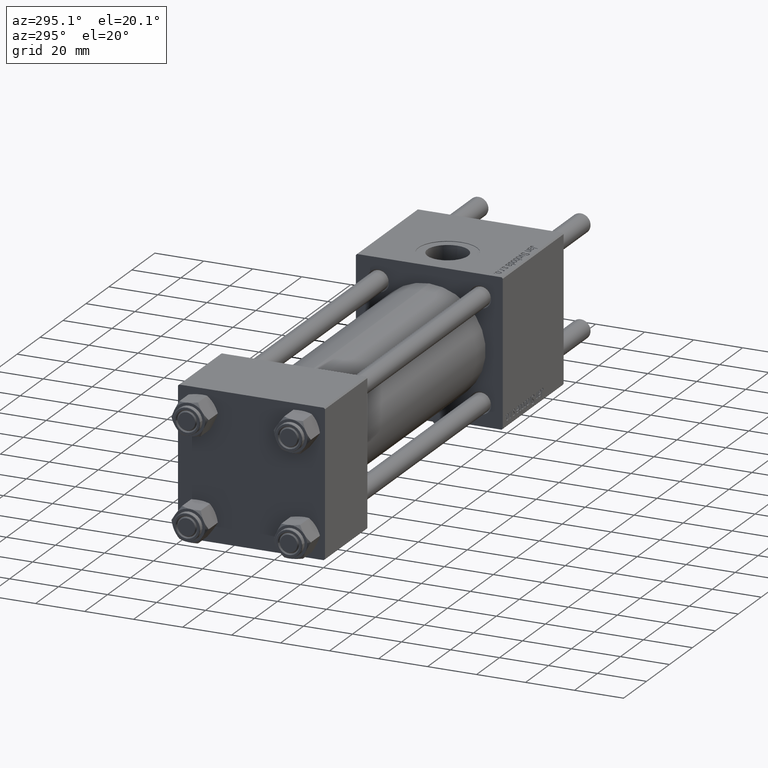
[diagram: clean part render]
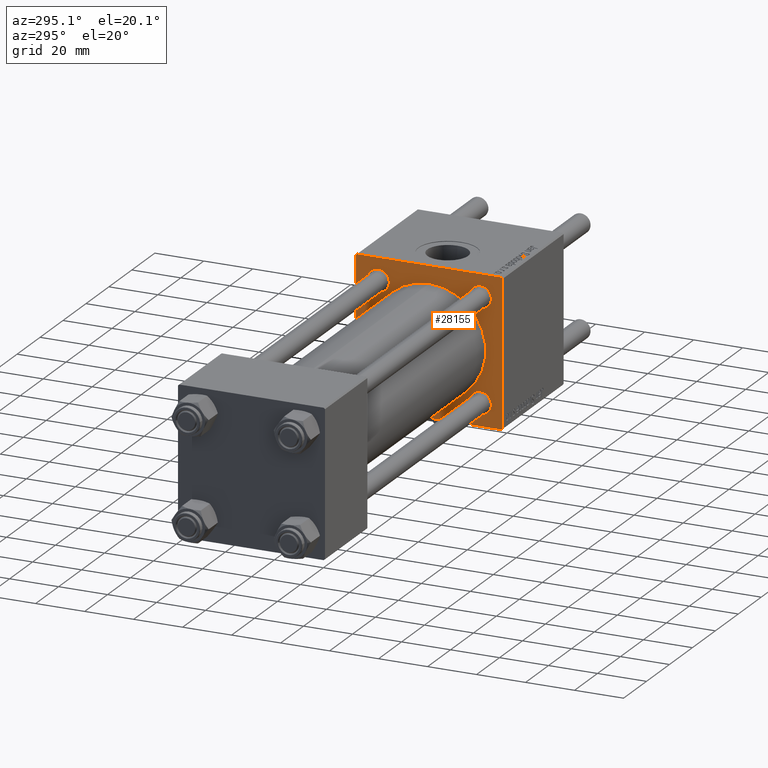
[diagram: same view with one face highlighted and labeled with its STEP entity id]
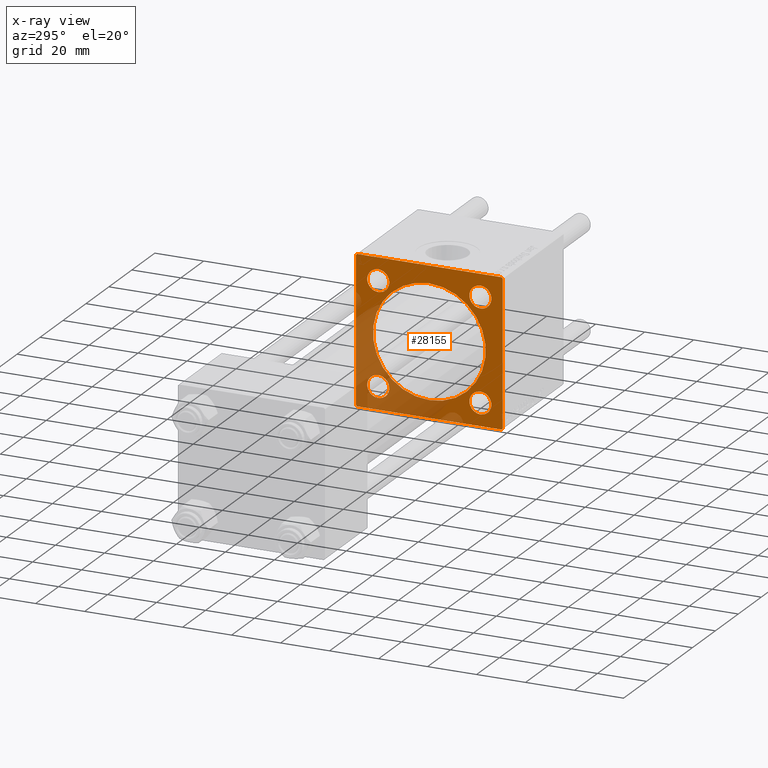
[diagram: x-ray of the same camera — body ghosted, the highlighted face saturated]
A machine part, auxiliary view. The second image highlights one B-rep face of the part: STEP entity #28155.
The next image is the same camera in x-ray: the body ghosted, the highlighted face saturated — about 33% of this face is hidden behind the body in this view.
In plain terms, the highlighted planar face has unit normal (-1, 0, 0).
Its self-contained STEP definition (entity closure, byte-faithful):
#258 = CARTESIAN_POINT ( 'NONE',  ( 155.0000000000000000, -30.00000000000000000, -29.50000000000001066 ) ) ;
#598 = VECTOR ( 'NONE', #13504, 1000.000000000000000 ) ;
#741 = VERTEX_POINT ( 'NONE', #258 ) ;
#837 = CARTESIAN_POINT ( 'NONE',  ( 155.0000000000000000, -20.84999999999999076, 20.85000000000000497 ) ) ;
#841 = AXIS2_PLACEMENT_3D ( 'NONE', #31314, #45233, #54414 ) ;
#951 = CIRCLE ( 'NONE', #5678, 4.500000000000003553 ) ;
#1455 = DIRECTION ( 'NONE',  ( 1.000000000000000000, -0.000000000000000000, 0.000000000000000000 ) ) ;
#1547 = DIRECTION ( 'NONE',  ( 1.000000000000000000, -0.000000000000000000, 0.000000000000000000 ) ) ;
#1572 = VERTEX_POINT ( 'NONE', #5936 ) ;
#1588 = VERTEX_POINT ( 'NONE', #15132 ) ;
#2357 = ORIENTED_EDGE ( 'NONE', *, *, #14188, .T. ) ;
#3678 = AXIS2_PLACEMENT_3D ( 'NONE', #14868, #55434, #37664 ) ;
#4018 = CARTESIAN_POINT ( 'NONE',  ( 155.0000000000000000, 30.00000000000000000, 30.00000000000000000 ) ) ;
#4205 = CARTESIAN_POINT ( 'NONE',  ( 155.0000000000000000, 29.50000000000002487, 30.00000000000000000 ) ) ;
#4337 = AXIS2_PLACEMENT_3D ( 'NONE', #22161, #14153, #35495 ) ;
#4365 = ORIENTED_EDGE ( 'NONE', *, *, #52358, .T. ) ;
#4561 = CARTESIAN_POINT ( 'NONE',  ( 155.0000000000000000, -29.50000000000002487, 29.99999999999999289 ) ) ;
#4647 = CIRCLE ( 'NONE', #3678, 4.500000000000003553 ) ;
#4672 = CARTESIAN_POINT ( 'NONE',  ( 155.0000000000000000, -20.84999999999999076, 25.35000000000000853 ) ) ;
#4805 = CARTESIAN_POINT ( 'NONE',  ( 155.0000000000000000, -20.84999999999999076, -20.85000000000000497 ) ) ;
#5202 = AXIS2_PLACEMENT_3D ( 'NONE', #54853, #5386, #45081 ) ;
#5386 = DIRECTION ( 'NONE',  ( -1.000000000000000000, 0.000000000000000000, -0.000000000000000000 ) ) ;
#5552 = LINE ( 'NONE', #41694, #15751 ) ;
#5678 = AXIS2_PLACEMENT_3D ( 'NONE', #21465, #11715, #52861 ) ;
#5936 = CARTESIAN_POINT ( 'NONE',  ( 155.0000000000000000, 20.84999999999999787, -16.34999999999999787 ) ) ;
#6007 = VECTOR ( 'NONE', #51816, 1000.000000000000114 ) ;
#6369 = EDGE_CURVE ( 'NONE', #42547, #741, #42374, .T. ) ;
#6513 = CARTESIAN_POINT ( 'NONE',  ( 155.0000000000000000, 29.75000000000001776, 29.75000000000001776 ) ) ;
#7823 = AXIS2_PLACEMENT_3D ( 'NONE', #4805, #54860, #24582 ) ;
#8108 = CARTESIAN_POINT ( 'NONE',  ( 155.0000000000000000, 30.00000000000000000, 30.00000000000000000 ) ) ;
#8212 = ORIENTED_EDGE ( 'NONE', *, *, #25643, .T. ) ;
#8280 = EDGE_CURVE ( 'NONE', #41361, #1588, #4647, .T. ) ;
#9998 = DIRECTION ( 'NONE',  ( 0.000000000000000000, 0.000000000000000000, 1.000000000000000000 ) ) ;
#10115 = FACE_BOUND ( 'NONE', #30886, .T. ) ;
#10121 = DIRECTION ( 'NONE',  ( 0.000000000000000000, 0.000000000000000000, 1.000000000000000000 ) ) ;
#10422 = DIRECTION ( 'NONE',  ( 0.000000000000000000, 0.000000000000000000, 1.000000000000000000 ) ) ;
#10479 = VECTOR ( 'NONE', #25325, 1000.000000000000114 ) ;
#10660 = CIRCLE ( 'NONE', #7823, 4.500000000000003553 ) ;
#10976 = DIRECTION ( 'NONE',  ( 0.000000000000000000, -0.7071067811865474617, 0.7071067811865474617 ) ) ;
#11715 = DIRECTION ( 'NONE',  ( 1.000000000000000000, -0.000000000000000000, 0.000000000000000000 ) ) ;
#12160 = CARTESIAN_POINT ( 'NONE',  ( 155.0000000000000000, 30.00000000000000000, -29.49999999999997868 ) ) ;
#12712 = EDGE_CURVE ( 'NONE', #1588, #41361, #31246, .T. ) ;
#13444 = AXIS2_PLACEMENT_3D ( 'NONE', #42604, #38452, #38154 ) ;
#13504 = DIRECTION ( 'NONE',  ( 0.000000000000000000, -1.000000000000000000, -1.156482317317871478E-16 ) ) ;
#13520 = VERTEX_POINT ( 'NONE', #4561 ) ;
#13676 = VERTEX_POINT ( 'NONE', #33752 ) ;
#14153 = DIRECTION ( 'NONE',  ( 1.000000000000000000, 0.000000000000000000, 0.000000000000000000 ) ) ;
#14188 = EDGE_CURVE ( 'NONE', #33502, #1572, #21692, .T. ) ;
#14459 = ORIENTED_EDGE ( 'NONE', *, *, #29776, .T. ) ;
#14489 = CARTESIAN_POINT ( 'NONE',  ( 155.0000000000000000, -20.84999999999999076, -20.85000000000000497 ) ) ;
#14868 = CARTESIAN_POINT ( 'NONE',  ( 155.0000000000000000, 20.84999999999999787, 20.85000000000000142 ) ) ;
#15109 = AXIS2_PLACEMENT_3D ( 'NONE', #41834, #1547, #10422 ) ;
#15132 = CARTESIAN_POINT ( 'NONE',  ( 155.0000000000000000, 20.84999999999999787, 25.35000000000000497 ) ) ;
#15751 = VECTOR ( 'NONE', #19186, 1000.000000000000000 ) ;
#18141 = EDGE_CURVE ( 'NONE', #37139, #24365, #21722, .T. ) ;
#18231 = VECTOR ( 'NONE', #22092, 1000.000000000000000 ) ;
#18518 = CIRCLE ( 'NONE', #4337, 23.00000000000000000 ) ;
#18903 = DIRECTION ( 'NONE',  ( 1.000000000000000000, -0.000000000000000000, 0.000000000000000000 ) ) ;
#19186 = DIRECTION ( 'NONE',  ( 0.000000000000000000, 0.000000000000000000, -1.000000000000000000 ) ) ;
#21465 = CARTESIAN_POINT ( 'NONE',  ( 155.0000000000000000, 20.84999999999999787, -20.85000000000000142 ) ) ;
#21524 = ORIENTED_EDGE ( 'NONE', *, *, #42479, .T. ) ;
#21548 = VERTEX_POINT ( 'NONE', #42329 ) ;
#21692 = CIRCLE ( 'NONE', #15109, 4.500000000000003553 ) ;
#21722 = LINE ( 'NONE', #30903, #10479 ) ;
#21823 = EDGE_LOOP ( 'NONE', ( #4365, #35889, #35183, #45687, #22696, #42780, #21524, #52888 ) ) ;
#22092 = DIRECTION ( 'NONE',  ( 0.000000000000000000, 0.000000000000000000, -1.000000000000000000 ) ) ;
#22161 = CARTESIAN_POINT ( 'NONE',  ( 155.0000000000000000, -2.602085213965210642E-15, 0.000000000000000000 ) ) ;
#22572 = FACE_OUTER_BOUND ( 'NONE', #21823, .T. ) ;
#22696 = ORIENTED_EDGE ( 'NONE', *, *, #58340, .F. ) ;
#23437 = ORIENTED_EDGE ( 'NONE', *, *, #12712, .T. ) ;
#23901 = VERTEX_POINT ( 'NONE', #40189 ) ;
#24096 = VERTEX_POINT ( 'NONE', #34544 ) ;
#24365 = VERTEX_POINT ( 'NONE', #25281 ) ;
#24582 = DIRECTION ( 'NONE',  ( 0.000000000000000000, 0.000000000000000000, 1.000000000000000000 ) ) ;
#24604 = CARTESIAN_POINT ( 'NONE',  ( 155.0000000000000000, -20.84999999999999076, 16.35000000000000142 ) ) ;
#25193 = EDGE_LOOP ( 'NONE', ( #56697, #49293 ) ) ;
#25281 = CARTESIAN_POINT ( 'NONE',  ( 155.0000000000000000, 29.50000000000000000, -29.99999999999999289 ) ) ;
#25325 = DIRECTION ( 'NONE',  ( -0.000000000000000000, -0.7071067811865474617, -0.7071067811865474617 ) ) ;
#25477 = LINE ( 'NONE', #6513, #6007 ) ;
#25643 = EDGE_CURVE ( 'NONE', #24096, #23901, #46642, .T. ) ;
#25683 = CARTESIAN_POINT ( 'NONE',  ( 155.0000000000000000, 30.00000000000000000, 29.50000000000002487 ) ) ;
#26701 = LINE ( 'NONE', #58363, #51204 ) ;
#26770 = CIRCLE ( 'NONE', #55173, 4.500000000000003553 ) ;
#26930 = VERTEX_POINT ( 'NONE', #25683 ) ;
#27619 = FACE_BOUND ( 'NONE', #37419, .T. ) ;
#28155 = ADVANCED_FACE ( 'NONE', ( #32930, #10115, #32047, #27619, #54268, #22572 ), #50697, .T. ) ;
#29776 = EDGE_CURVE ( 'NONE', #33425, #57971, #37849, .T. ) ;
#29992 = ORIENTED_EDGE ( 'NONE', *, *, #43347, .T. ) ;
#30381 = EDGE_CURVE ( 'NONE', #1572, #33502, #951, .T. ) ;
#30886 = EDGE_LOOP ( 'NONE', ( #23437, #44576 ) ) ;
#30903 = CARTESIAN_POINT ( 'NONE',  ( 155.0000000000000000, 29.74999999999999645, -29.74999999999999645 ) ) ;
#31038 = VECTOR ( 'NONE', #10976, 1000.000000000000114 ) ;
#31246 = CIRCLE ( 'NONE', #841, 4.500000000000003553 ) ;
#31314 = CARTESIAN_POINT ( 'NONE',  ( 155.0000000000000000, 20.84999999999999787, 20.85000000000000142 ) ) ;
#31461 = CIRCLE ( 'NONE', #13444, 23.00000000000000000 ) ;
#32047 = FACE_BOUND ( 'NONE', #53072, .T. ) ;
#32842 = DIRECTION ( 'NONE',  ( 0.000000000000000000, 0.000000000000000000, 1.000000000000000000 ) ) ;
#32930 = FACE_BOUND ( 'NONE', #34605, .T. ) ;
#33425 = VERTEX_POINT ( 'NONE', #4672 ) ;
#33502 = VERTEX_POINT ( 'NONE', #35720 ) ;
#33738 = EDGE_CURVE ( 'NONE', #13676, #13520, #26701, .T. ) ;
#33752 = CARTESIAN_POINT ( 'NONE',  ( 155.0000000000000000, -30.00000000000000000, 29.50000000000001776 ) ) ;
#34544 = CARTESIAN_POINT ( 'NONE',  ( 155.0000000000000000, -20.84999999999999076, -25.35000000000000853 ) ) ;
#34605 = EDGE_LOOP ( 'NONE', ( #14459, #29992 ) ) ;
#35138 = LINE ( 'NONE', #4018, #18231 ) ;
#35183 = ORIENTED_EDGE ( 'NONE', *, *, #52181, .F. ) ;
#35495 = DIRECTION ( 'NONE',  ( 0.000000000000000000, 0.000000000000000000, -1.000000000000000000 ) ) ;
#35653 = DIRECTION ( 'NONE',  ( 0.000000000000000000, -1.000000000000000000, -1.156482317317871478E-16 ) ) ;
#35720 = CARTESIAN_POINT ( 'NONE',  ( 155.0000000000000000, 20.84999999999999787, -25.35000000000000497 ) ) ;
#35889 = ORIENTED_EDGE ( 'NONE', *, *, #6369, .T. ) ;
#36597 = EDGE_CURVE ( 'NONE', #40789, #21548, #31461, .T. ) ;
#37139 = VERTEX_POINT ( 'NONE', #12160 ) ;
#37419 = EDGE_LOOP ( 'NONE', ( #45235, #8212 ) ) ;
#37664 = DIRECTION ( 'NONE',  ( 0.000000000000000000, 0.000000000000000000, 1.000000000000000000 ) ) ;
#37849 = CIRCLE ( 'NONE', #43531, 4.500000000000003553 ) ;
#37854 = EDGE_CURVE ( 'NONE', #23901, #24096, #10660, .T. ) ;
#38154 = DIRECTION ( 'NONE',  ( 0.000000000000000000, 0.000000000000000000, -1.000000000000000000 ) ) ;
#38452 = DIRECTION ( 'NONE',  ( 1.000000000000000000, 0.000000000000000000, 0.000000000000000000 ) ) ;
#39727 = EDGE_CURVE ( 'NONE', #49296, #26930, #25477, .T. ) ;
#40189 = CARTESIAN_POINT ( 'NONE',  ( 155.0000000000000000, -20.84999999999999076, -16.35000000000000142 ) ) ;
#40789 = VERTEX_POINT ( 'NONE', #55980 ) ;
#41361 = VERTEX_POINT ( 'NONE', #48335 ) ;
#41694 = CARTESIAN_POINT ( 'NONE',  ( 155.0000000000000000, -30.00000000000000000, 29.99999999999999289 ) ) ;
#41834 = CARTESIAN_POINT ( 'NONE',  ( 155.0000000000000000, 20.84999999999999787, -20.85000000000000142 ) ) ;
#42329 = CARTESIAN_POINT ( 'NONE',  ( 155.0000000000000000, -2.602085213965210642E-15, 23.00000000000000000 ) ) ;
#42374 = LINE ( 'NONE', #51543, #31038 ) ;
#42479 = EDGE_CURVE ( 'NONE', #26930, #37139, #35138, .T. ) ;
#42547 = VERTEX_POINT ( 'NONE', #54111 ) ;
#42604 = CARTESIAN_POINT ( 'NONE',  ( 155.0000000000000000, -2.602085213965210642E-15, 0.000000000000000000 ) ) ;
#42780 = ORIENTED_EDGE ( 'NONE', *, *, #39727, .T. ) ;
#43347 = EDGE_CURVE ( 'NONE', #57971, #33425, #26770, .T. ) ;
#43531 = AXIS2_PLACEMENT_3D ( 'NONE', #837, #18903, #9998 ) ;
#43714 = ORIENTED_EDGE ( 'NONE', *, *, #30381, .T. ) ;
#44576 = ORIENTED_EDGE ( 'NONE', *, *, #8280, .T. ) ;
#45081 = DIRECTION ( 'NONE',  ( -0.000000000000000000, 0.000000000000000000, 1.000000000000000000 ) ) ;
#45233 = DIRECTION ( 'NONE',  ( 1.000000000000000000, -0.000000000000000000, 0.000000000000000000 ) ) ;
#45235 = ORIENTED_EDGE ( 'NONE', *, *, #37854, .T. ) ;
#45687 = ORIENTED_EDGE ( 'NONE', *, *, #33738, .T. ) ;
#46642 = CIRCLE ( 'NONE', #54196, 4.500000000000003553 ) ;
#48335 = CARTESIAN_POINT ( 'NONE',  ( 155.0000000000000000, 20.84999999999999787, 16.34999999999999787 ) ) ;
#48695 = LINE ( 'NONE', #8108, #56450 ) ;
#49293 = ORIENTED_EDGE ( 'NONE', *, *, #36597, .T. ) ;
#49296 = VERTEX_POINT ( 'NONE', #4205 ) ;
#49921 = CARTESIAN_POINT ( 'NONE',  ( 155.0000000000000000, 30.00000000000000000, -29.99999999999999289 ) ) ;
#50697 = PLANE ( 'NONE',  #5202 ) ;
#51204 = VECTOR ( 'NONE', #53923, 1000.000000000000114 ) ;
#51211 = EDGE_CURVE ( 'NONE', #21548, #40789, #18518, .T. ) ;
#51543 = CARTESIAN_POINT ( 'NONE',  ( 155.0000000000000000, -29.75000000000001776, -29.75000000000001776 ) ) ;
#51816 = DIRECTION ( 'NONE',  ( 0.000000000000000000, 0.7071067811865474617, -0.7071067811865474617 ) ) ;
#52181 = EDGE_CURVE ( 'NONE', #13676, #741, #5552, .T. ) ;
#52358 = EDGE_CURVE ( 'NONE', #24365, #42547, #53773, .T. ) ;
#52861 = DIRECTION ( 'NONE',  ( 0.000000000000000000, 0.000000000000000000, 1.000000000000000000 ) ) ;
#52888 = ORIENTED_EDGE ( 'NONE', *, *, #18141, .T. ) ;
#53072 = EDGE_LOOP ( 'NONE', ( #43714, #2357 ) ) ;
#53773 = LINE ( 'NONE', #49921, #598 ) ;
#53923 = DIRECTION ( 'NONE',  ( -0.000000000000000000, 0.7071067811865474617, 0.7071067811865474617 ) ) ;
#54111 = CARTESIAN_POINT ( 'NONE',  ( 155.0000000000000000, -29.50000000000002487, -30.00000000000000000 ) ) ;
#54196 = AXIS2_PLACEMENT_3D ( 'NONE', #14489, #1455, #32842 ) ;
#54268 = FACE_BOUND ( 'NONE', #25193, .T. ) ;
#54414 = DIRECTION ( 'NONE',  ( 0.000000000000000000, 0.000000000000000000, 1.000000000000000000 ) ) ;
#54853 = CARTESIAN_POINT ( 'NONE',  ( 155.0000000000000000, 0.000000000000000000, 0.000000000000000000 ) ) ;
#54860 = DIRECTION ( 'NONE',  ( 1.000000000000000000, -0.000000000000000000, 0.000000000000000000 ) ) ;
#55154 = CARTESIAN_POINT ( 'NONE',  ( 155.0000000000000000, -20.84999999999999076, 20.85000000000000497 ) ) ;
#55173 = AXIS2_PLACEMENT_3D ( 'NONE', #55154, #56035, #10121 ) ;
#55434 = DIRECTION ( 'NONE',  ( 1.000000000000000000, -0.000000000000000000, 0.000000000000000000 ) ) ;
#55980 = CARTESIAN_POINT ( 'NONE',  ( 155.0000000000000000, 2.146024240737016609E-16, -23.00000000000000000 ) ) ;
#56035 = DIRECTION ( 'NONE',  ( 1.000000000000000000, -0.000000000000000000, 0.000000000000000000 ) ) ;
#56450 = VECTOR ( 'NONE', #35653, 1000.000000000000000 ) ;
#56697 = ORIENTED_EDGE ( 'NONE', *, *, #51211, .T. ) ;
#57971 = VERTEX_POINT ( 'NONE', #24604 ) ;
#58340 = EDGE_CURVE ( 'NONE', #49296, #13520, #48695, .T. ) ;
#58363 = CARTESIAN_POINT ( 'NONE',  ( 155.0000000000000000, -29.75000000000001066, 29.75000000000001066 ) ) ;